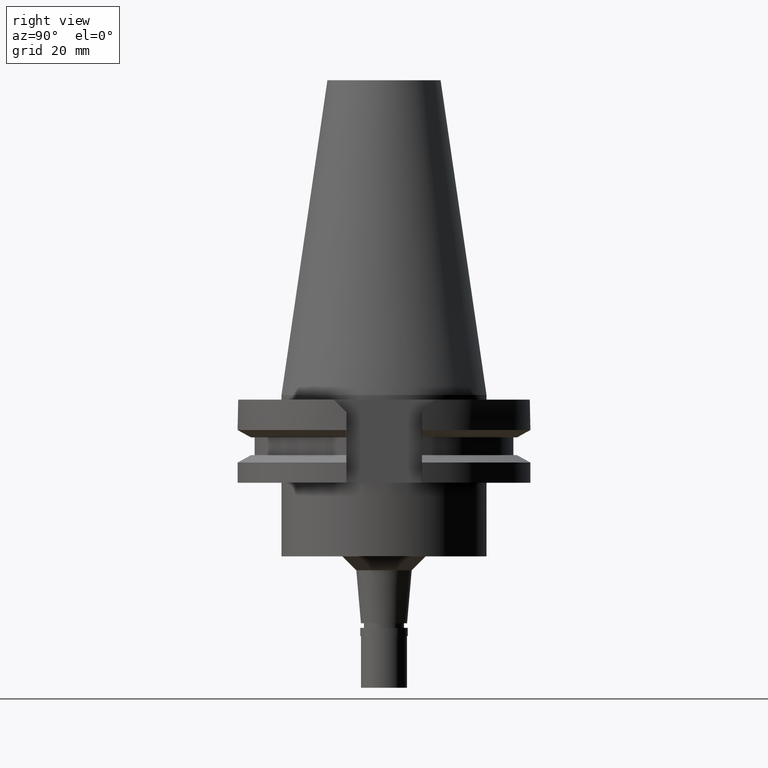
[diagram: clean part render]
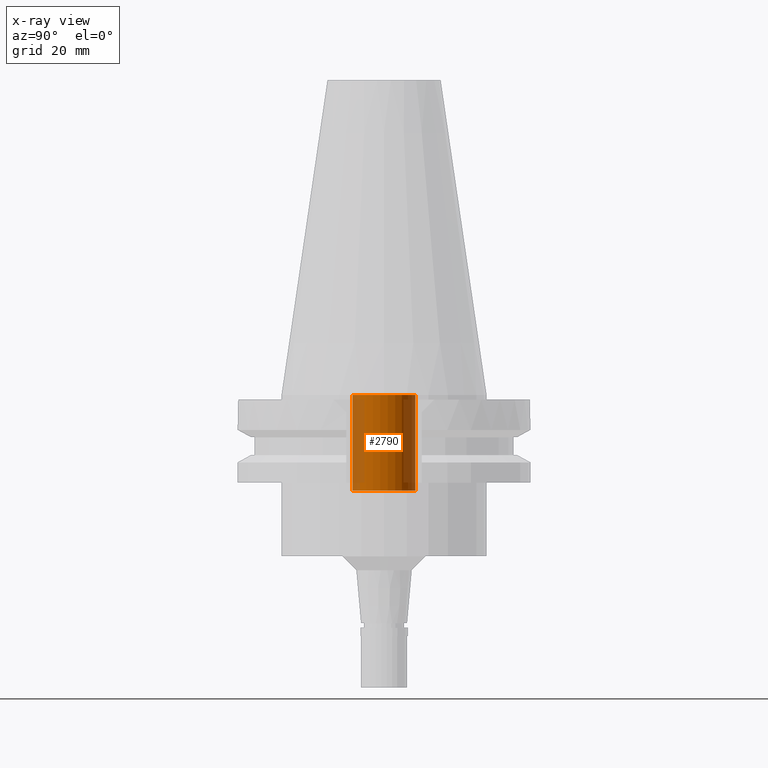
[diagram: x-ray — body ghosted, one internal face saturated and labeled with its STEP entity id]
A machine part, right view, then the same camera in x-ray: the body is ghosted and one INTERNAL B-rep face — a face not visible from any outside direction — is saturated and labeled: STEP entity #2790.
In plain terms, the highlighted cylindrical surface (edge-blend (fillet) strip) has radius 6.8 mm, axis along (0, 0, -1).
Its self-contained STEP definition (entity closure, byte-faithful):
#134 = CARTESIAN_POINT ( 'NONE',  ( 0.0000000000000000000, 6.799999999999999822, -20.75000000000000000 ) ) ;
#160 = CIRCLE ( 'NONE', #2637, 6.799999999999999822 ) ;
#222 = VECTOR ( 'NONE', #592, 1000.000000000000000 ) ;
#323 = DIRECTION ( 'NONE',  ( 0.0000000000000000000, 0.0000000000000000000, 1.000000000000000000 ) ) ;
#392 = CARTESIAN_POINT ( 'NONE',  ( 0.0000000000000000000, -6.799999999999999822, -9.947598300640998705E-14 ) ) ;
#473 = CARTESIAN_POINT ( 'NONE',  ( 0.0000000000000000000, 2.138876250880999822E-14, -1.136868377215999875E-13 ) ) ;
#577 = EDGE_CURVE ( 'NONE', #2401, #2684, #160, .T. ) ;
#592 = DIRECTION ( 'NONE',  ( 0.0000000000000000000, 0.0000000000000000000, 1.000000000000000000 ) ) ;
#613 = DIRECTION ( 'NONE',  ( 0.0000000000000000000, -1.000000000000000000, 0.0000000000000000000 ) ) ;
#646 = VERTEX_POINT ( 'NONE', #1219 ) ;
#665 = FACE_OUTER_BOUND ( 'NONE', #3021, .T. ) ;
#689 = ORIENTED_EDGE ( 'NONE', *, *, #577, .T. ) ;
#741 = VECTOR ( 'NONE', #323, 1000.000000000000000 ) ;
#774 = CARTESIAN_POINT ( 'NONE',  ( 0.0000000000000000000, -6.799999999999999822, -20.75000000000000000 ) ) ;
#968 = EDGE_CURVE ( 'NONE', #646, #2684, #2376, .T. ) ;
#1001 = AXIS2_PLACEMENT_3D ( 'NONE', #1009, #2072, #2732 ) ;
#1009 = CARTESIAN_POINT ( 'NONE',  ( 0.0000000000000000000, 2.138876250880999822E-14, -20.75000000000000000 ) ) ;
#1077 = CYLINDRICAL_SURFACE ( 'NONE', #1200, 6.799999999999999822 ) ;
#1200 = AXIS2_PLACEMENT_3D ( 'NONE', #2352, #1372, #613 ) ;
#1219 = CARTESIAN_POINT ( 'NONE',  ( 0.0000000000000000000, 6.799999999999999822, -20.75000000000000000 ) ) ;
#1372 = DIRECTION ( 'NONE',  ( 0.0000000000000000000, 0.0000000000000000000, -1.000000000000000000 ) ) ;
#1539 = LINE ( 'NONE', #774, #741 ) ;
#1688 = VERTEX_POINT ( 'NONE', #2539 ) ;
#1953 = DIRECTION ( 'NONE',  ( 0.0000000000000000000, -1.000000000000000000, 0.0000000000000000000 ) ) ;
#2072 = DIRECTION ( 'NONE',  ( 0.0000000000000000000, 0.0000000000000000000, -1.000000000000000000 ) ) ;
#2075 = ORIENTED_EDGE ( 'NONE', *, *, #2620, .T. ) ;
#2188 = EDGE_CURVE ( 'NONE', #646, #1688, #2231, .T. ) ;
#2231 = CIRCLE ( 'NONE', #1001, 6.799999999999999822 ) ;
#2352 = CARTESIAN_POINT ( 'NONE',  ( 0.0000000000000000000, 2.138876250880999822E-14, 74.65250000000000341 ) ) ;
#2376 = LINE ( 'NONE', #134, #222 ) ;
#2401 = VERTEX_POINT ( 'NONE', #392 ) ;
#2521 = CARTESIAN_POINT ( 'NONE',  ( 0.0000000000000000000, 6.799999999999999822, -9.947598300640998705E-14 ) ) ;
#2539 = CARTESIAN_POINT ( 'NONE',  ( 0.0000000000000000000, -6.799999999999999822, -20.75000000000000000 ) ) ;
#2620 = EDGE_CURVE ( 'NONE', #1688, #2401, #1539, .T. ) ;
#2637 = AXIS2_PLACEMENT_3D ( 'NONE', #473, #2714, #1953 ) ;
#2684 = VERTEX_POINT ( 'NONE', #2521 ) ;
#2714 = DIRECTION ( 'NONE',  ( 0.0000000000000000000, 0.0000000000000000000, 1.000000000000000000 ) ) ;
#2732 = DIRECTION ( 'NONE',  ( 0.0000000000000000000, 1.000000000000000000, 0.0000000000000000000 ) ) ;
#2790 = ADVANCED_FACE ( 'NONE', ( #665 ), #1077, .F. ) ;
#2836 = ORIENTED_EDGE ( 'NONE', *, *, #2188, .T. ) ;
#3021 = EDGE_LOOP ( 'NONE', ( #2836, #2075, #689, #3188 ) ) ;
#3188 = ORIENTED_EDGE ( 'NONE', *, *, #968, .F. ) ;